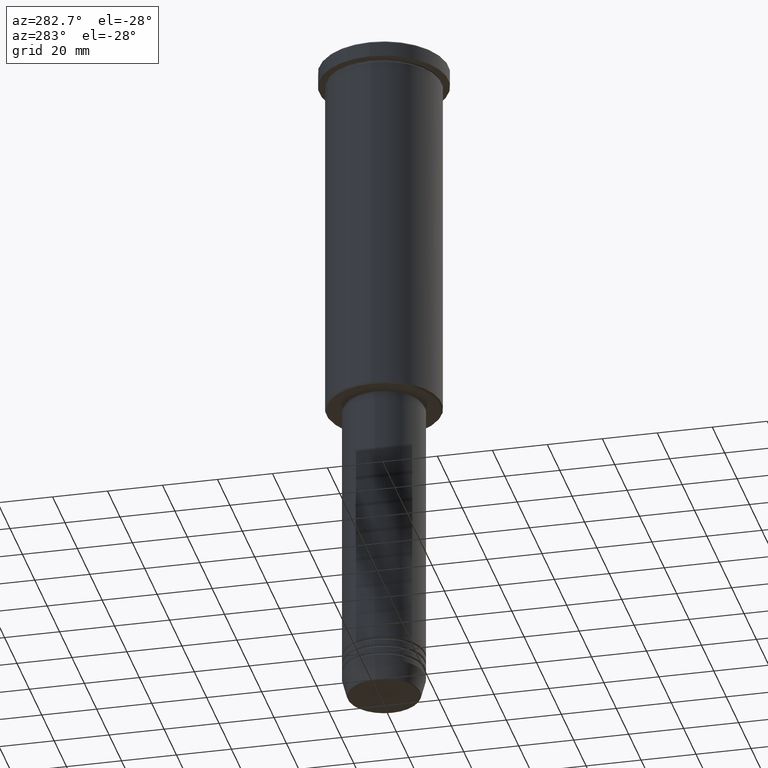
[diagram: clean part render]
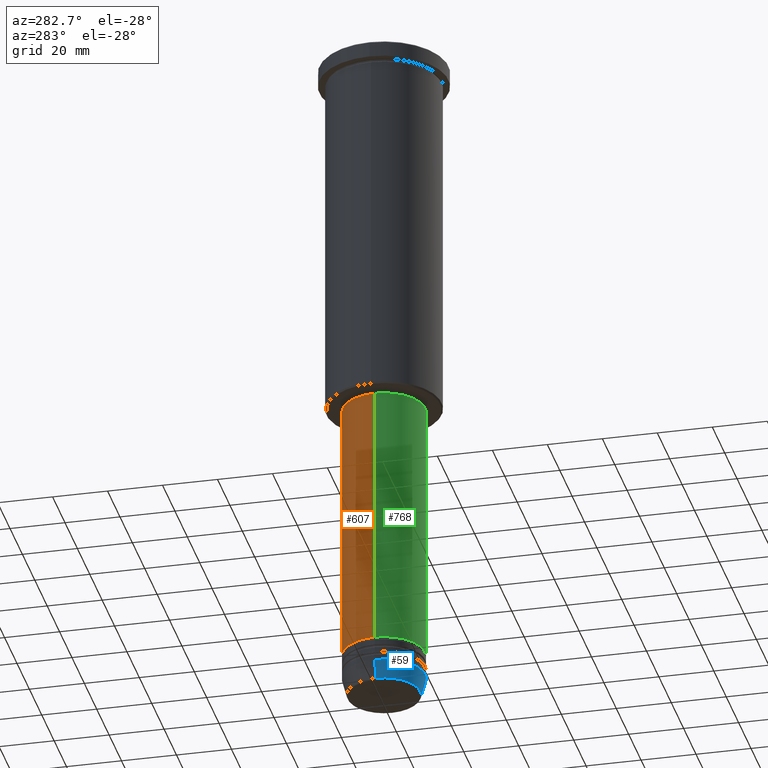
[diagram: same view with three faces highlighted in distinct colors, each labeled with its STEP entity id]
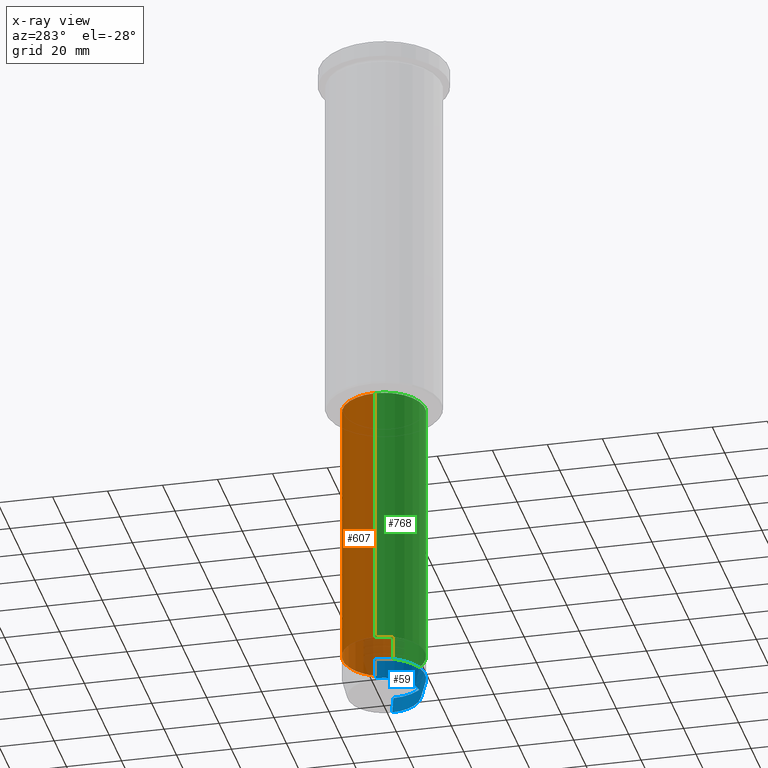
[diagram: x-ray of the same camera — body ghosted, the three highlighted faces saturated]
A machine part, auxiliary view with three faces highlighted in distinct colors.
The next image is the same camera in x-ray (body ghosted, the three faces saturated) — at least one of them is partly hidden behind the body in this view.
Their STEP definitions:

[orange] entity #607 — the highlighted cylindrical surface (partial cylindrical patch) has radius 15 mm, axis along (-0, -0, 1).
#111 = CARTESIAN_POINT ( 'NONE',  ( 15.00000000000000000, 0.000000000000000000, -137.0000000000000000 ) ) ;
#139 = DIRECTION ( 'NONE',  ( -0.000000000000000000, -0.000000000000000000, 1.000000000000000000 ) ) ;
#194 = DIRECTION ( 'NONE',  ( 1.000000000000000000, 0.000000000000000000, 0.000000000000000000 ) ) ;
#200 = CARTESIAN_POINT ( 'NONE',  ( 0.000000000000000000, 0.000000000000000000, -137.0000000000000000 ) ) ;
#216 = CARTESIAN_POINT ( 'NONE',  ( -15.00000000000000000, 1.836970198721029589E-15, -137.0000000000000000 ) ) ;
#235 = ORIENTED_EDGE ( 'NONE', *, *, #302, .F. ) ;
#259 = AXIS2_PLACEMENT_3D ( 'NONE', #200, #632, #194 ) ;
#269 = VERTEX_POINT ( 'NONE', #1062 ) ;
#302 = EDGE_CURVE ( 'NONE', #393, #400, #846, .T. ) ;
#333 = AXIS2_PLACEMENT_3D ( 'NONE', #518, #139, #606 ) ;
#361 = CYLINDRICAL_SURFACE ( 'NONE', #1045, 15.00000000000000000 ) ;
#387 = VERTEX_POINT ( 'NONE', #808 ) ;
#390 = CIRCLE ( 'NONE', #333, 15.00000000000000000 ) ;
#393 = VERTEX_POINT ( 'NONE', #111 ) ;
#400 = VERTEX_POINT ( 'NONE', #216 ) ;
#431 = EDGE_CURVE ( 'NONE', #269, #393, #658, .T. ) ;
#435 = CARTESIAN_POINT ( 'NONE',  ( 0.000000000000000000, 0.000000000000000000, 0.000000000000000000 ) ) ;
#518 = CARTESIAN_POINT ( 'NONE',  ( 0.000000000000000000, 0.000000000000000000, -235.0000000000000000 ) ) ;
#546 = EDGE_LOOP ( 'NONE', ( #1047, #783, #235, #1159 ) ) ;
#580 = CARTESIAN_POINT ( 'NONE',  ( -15.00000000000000000, 1.836970198721029589E-15, 0.000000000000000000 ) ) ;
#582 = VECTOR ( 'NONE', #766, 1000.000000000000000 ) ;
#606 = DIRECTION ( 'NONE',  ( 1.000000000000000000, 0.000000000000000000, 0.000000000000000000 ) ) ;
#607 = ADVANCED_FACE ( 'NONE', ( #732 ), #361, .T. ) ;
#632 = DIRECTION ( 'NONE',  ( -0.000000000000000000, -0.000000000000000000, 1.000000000000000000 ) ) ;
#658 = LINE ( 'NONE', #743, #707 ) ;
#707 = VECTOR ( 'NONE', #1031, 1000.000000000000000 ) ;
#732 = FACE_OUTER_BOUND ( 'NONE', #546, .T. ) ;
#743 = CARTESIAN_POINT ( 'NONE',  ( 15.00000000000000000, 0.000000000000000000, 0.000000000000000000 ) ) ;
#766 = DIRECTION ( 'NONE',  ( -0.000000000000000000, -0.000000000000000000, 1.000000000000000000 ) ) ;
#783 = ORIENTED_EDGE ( 'NONE', *, *, #816, .T. ) ;
#808 = CARTESIAN_POINT ( 'NONE',  ( -15.00000000000000000, 1.836970198721029589E-15, -235.0000000000000000 ) ) ;
#816 = EDGE_CURVE ( 'NONE', #387, #400, #1107, .T. ) ;
#846 = CIRCLE ( 'NONE', #259, 15.00000000000000000 ) ;
#1031 = DIRECTION ( 'NONE',  ( -0.000000000000000000, -0.000000000000000000, 1.000000000000000000 ) ) ;
#1045 = AXIS2_PLACEMENT_3D ( 'NONE', #435, #1077, #1080 ) ;
#1047 = ORIENTED_EDGE ( 'NONE', *, *, #1168, .T. ) ;
#1062 = CARTESIAN_POINT ( 'NONE',  ( 15.00000000000000000, 0.000000000000000000, -235.0000000000000000 ) ) ;
#1077 = DIRECTION ( 'NONE',  ( -0.000000000000000000, -0.000000000000000000, 1.000000000000000000 ) ) ;
#1080 = DIRECTION ( 'NONE',  ( 1.000000000000000000, 0.000000000000000000, 0.000000000000000000 ) ) ;
#1107 = LINE ( 'NONE', #580, #582 ) ;
#1159 = ORIENTED_EDGE ( 'NONE', *, *, #431, .F. ) ;
#1168 = EDGE_CURVE ( 'NONE', #269, #387, #390, .T. ) ;

[blue] entity #59 — the highlighted conical surface has half-angle 15 deg.
#4 = CONICAL_SURFACE ( 'NONE', #672, 15.00000000000000000, 0.2617993877991500740 ) ;
#12 = EDGE_CURVE ( 'NONE', #966, #182, #874, .T. ) ;
#48 = CARTESIAN_POINT ( 'NONE',  ( 15.00000000000000000, 0.000000000000000000, -244.0000000000000284 ) ) ;
#49 = AXIS2_PLACEMENT_3D ( 'NONE', #651, #77, #283 ) ;
#59 = ADVANCED_FACE ( 'NONE', ( #272 ), #4, .T. ) ;
#77 = DIRECTION ( 'NONE',  ( -0.000000000000000000, -0.000000000000000000, 1.000000000000000000 ) ) ;
#81 = EDGE_LOOP ( 'NONE', ( #359, #867, #1055, #985 ) ) ;
#182 = VERTEX_POINT ( 'NONE', #949 ) ;
#198 = DIRECTION ( 'NONE',  ( -0.000000000000000000, -0.000000000000000000, 1.000000000000000000 ) ) ;
#272 = FACE_OUTER_BOUND ( 'NONE', #81, .T. ) ;
#283 = DIRECTION ( 'NONE',  ( 1.000000000000000000, 0.000000000000000000, 0.000000000000000000 ) ) ;
#359 = ORIENTED_EDGE ( 'NONE', *, *, #12, .F. ) ;
#449 = DIRECTION ( 'NONE',  ( -0.2588190451025213501, 3.169619151431772337E-17, 0.9659258262890680902 ) ) ;
#507 = AXIS2_PLACEMENT_3D ( 'NONE', #1182, #198, #547 ) ;
#536 = CARTESIAN_POINT ( 'NONE',  ( -13.22365507213719305, 1.728200442216588583E-15, -250.6294095225512422 ) ) ;
#547 = DIRECTION ( 'NONE',  ( 1.000000000000000000, 0.000000000000000000, 0.000000000000000000 ) ) ;
#548 = CARTESIAN_POINT ( 'NONE',  ( 15.00000000000000000, 0.000000000000000000, -244.0000000000000284 ) ) ;
#550 = DIRECTION ( 'NONE',  ( -0.000000000000000000, -0.000000000000000000, 1.000000000000000000 ) ) ;
#561 = CIRCLE ( 'NONE', #49, 15.00000000000000000 ) ;
#603 = EDGE_CURVE ( 'NONE', #182, #932, #561, .T. ) ;
#633 = CARTESIAN_POINT ( 'NONE',  ( -15.00000000000000000, 1.836970198721029589E-15, -244.0000000000000284 ) ) ;
#651 = CARTESIAN_POINT ( 'NONE',  ( 0.000000000000000000, 0.000000000000000000, -244.0000000000000284 ) ) ;
#656 = EDGE_CURVE ( 'NONE', #966, #717, #1014, .T. ) ;
#672 = AXIS2_PLACEMENT_3D ( 'NONE', #729, #550, #903 ) ;
#691 = VECTOR ( 'NONE', #1037, 1000.000000000000000 ) ;
#717 = VERTEX_POINT ( 'NONE', #1113 ) ;
#729 = CARTESIAN_POINT ( 'NONE',  ( 0.000000000000000000, 0.000000000000000000, -244.0000000000000284 ) ) ;
#863 = VECTOR ( 'NONE', #449, 1000.000000000000000 ) ;
#867 = ORIENTED_EDGE ( 'NONE', *, *, #656, .T. ) ;
#874 = LINE ( 'NONE', #633, #863 ) ;
#903 = DIRECTION ( 'NONE',  ( 1.000000000000000000, 0.000000000000000000, 0.000000000000000000 ) ) ;
#932 = VERTEX_POINT ( 'NONE', #548 ) ;
#940 = LINE ( 'NONE', #48, #691 ) ;
#949 = CARTESIAN_POINT ( 'NONE',  ( -15.00000000000000000, 1.836970198721029589E-15, -244.0000000000000284 ) ) ;
#966 = VERTEX_POINT ( 'NONE', #536 ) ;
#985 = ORIENTED_EDGE ( 'NONE', *, *, #603, .F. ) ;
#1014 = CIRCLE ( 'NONE', #507, 13.22365507213719305 ) ;
#1037 = DIRECTION ( 'NONE',  ( 0.2588190451025213501, 0.000000000000000000, 0.9659258262890680902 ) ) ;
#1055 = ORIENTED_EDGE ( 'NONE', *, *, #1158, .T. ) ;
#1113 = CARTESIAN_POINT ( 'NONE',  ( 13.22365507213719305, 0.000000000000000000, -250.6294095225512422 ) ) ;
#1158 = EDGE_CURVE ( 'NONE', #717, #932, #940, .T. ) ;
#1182 = CARTESIAN_POINT ( 'NONE',  ( 0.000000000000000000, 0.000000000000000000, -250.6294095225512422 ) ) ;

[green] entity #768 — the highlighted cylindrical surface (partial cylindrical patch) has radius 15 mm, axis along (-0, -0, 1).
#57 = ORIENTED_EDGE ( 'NONE', *, *, #1176, .T. ) ;
#58 = DIRECTION ( 'NONE',  ( -0.000000000000000000, -0.000000000000000000, 1.000000000000000000 ) ) ;
#92 = CIRCLE ( 'NONE', #765, 15.00000000000000000 ) ;
#111 = CARTESIAN_POINT ( 'NONE',  ( 15.00000000000000000, 0.000000000000000000, -137.0000000000000000 ) ) ;
#133 = CARTESIAN_POINT ( 'NONE',  ( 0.000000000000000000, 0.000000000000000000, 0.000000000000000000 ) ) ;
#152 = FACE_OUTER_BOUND ( 'NONE', #838, .T. ) ;
#216 = CARTESIAN_POINT ( 'NONE',  ( -15.00000000000000000, 1.836970198721029589E-15, -137.0000000000000000 ) ) ;
#269 = VERTEX_POINT ( 'NONE', #1062 ) ;
#315 = AXIS2_PLACEMENT_3D ( 'NONE', #453, #466, #549 ) ;
#325 = CARTESIAN_POINT ( 'NONE',  ( 0.000000000000000000, 0.000000000000000000, -235.0000000000000000 ) ) ;
#360 = EDGE_CURVE ( 'NONE', #400, #393, #1064, .T. ) ;
#387 = VERTEX_POINT ( 'NONE', #808 ) ;
#393 = VERTEX_POINT ( 'NONE', #111 ) ;
#400 = VERTEX_POINT ( 'NONE', #216 ) ;
#415 = DIRECTION ( 'NONE',  ( 1.000000000000000000, 0.000000000000000000, 0.000000000000000000 ) ) ;
#431 = EDGE_CURVE ( 'NONE', #269, #393, #658, .T. ) ;
#433 = ORIENTED_EDGE ( 'NONE', *, *, #360, .F. ) ;
#453 = CARTESIAN_POINT ( 'NONE',  ( 0.000000000000000000, 0.000000000000000000, -137.0000000000000000 ) ) ;
#466 = DIRECTION ( 'NONE',  ( -0.000000000000000000, -0.000000000000000000, 1.000000000000000000 ) ) ;
#483 = CYLINDRICAL_SURFACE ( 'NONE', #909, 15.00000000000000000 ) ;
#549 = DIRECTION ( 'NONE',  ( 1.000000000000000000, 0.000000000000000000, 0.000000000000000000 ) ) ;
#580 = CARTESIAN_POINT ( 'NONE',  ( -15.00000000000000000, 1.836970198721029589E-15, 0.000000000000000000 ) ) ;
#582 = VECTOR ( 'NONE', #766, 1000.000000000000000 ) ;
#658 = LINE ( 'NONE', #743, #707 ) ;
#707 = VECTOR ( 'NONE', #1031, 1000.000000000000000 ) ;
#730 = ORIENTED_EDGE ( 'NONE', *, *, #816, .F. ) ;
#743 = CARTESIAN_POINT ( 'NONE',  ( 15.00000000000000000, 0.000000000000000000, 0.000000000000000000 ) ) ;
#764 = ORIENTED_EDGE ( 'NONE', *, *, #431, .T. ) ;
#765 = AXIS2_PLACEMENT_3D ( 'NONE', #325, #1057, #945 ) ;
#766 = DIRECTION ( 'NONE',  ( -0.000000000000000000, -0.000000000000000000, 1.000000000000000000 ) ) ;
#768 = ADVANCED_FACE ( 'NONE', ( #152 ), #483, .T. ) ;
#808 = CARTESIAN_POINT ( 'NONE',  ( -15.00000000000000000, 1.836970198721029589E-15, -235.0000000000000000 ) ) ;
#816 = EDGE_CURVE ( 'NONE', #387, #400, #1107, .T. ) ;
#838 = EDGE_LOOP ( 'NONE', ( #730, #57, #764, #433 ) ) ;
#909 = AXIS2_PLACEMENT_3D ( 'NONE', #133, #58, #415 ) ;
#945 = DIRECTION ( 'NONE',  ( 1.000000000000000000, 0.000000000000000000, 0.000000000000000000 ) ) ;
#1031 = DIRECTION ( 'NONE',  ( -0.000000000000000000, -0.000000000000000000, 1.000000000000000000 ) ) ;
#1057 = DIRECTION ( 'NONE',  ( -0.000000000000000000, -0.000000000000000000, 1.000000000000000000 ) ) ;
#1062 = CARTESIAN_POINT ( 'NONE',  ( 15.00000000000000000, 0.000000000000000000, -235.0000000000000000 ) ) ;
#1064 = CIRCLE ( 'NONE', #315, 15.00000000000000000 ) ;
#1107 = LINE ( 'NONE', #580, #582 ) ;
#1176 = EDGE_CURVE ( 'NONE', #387, #269, #92, .T. ) ;